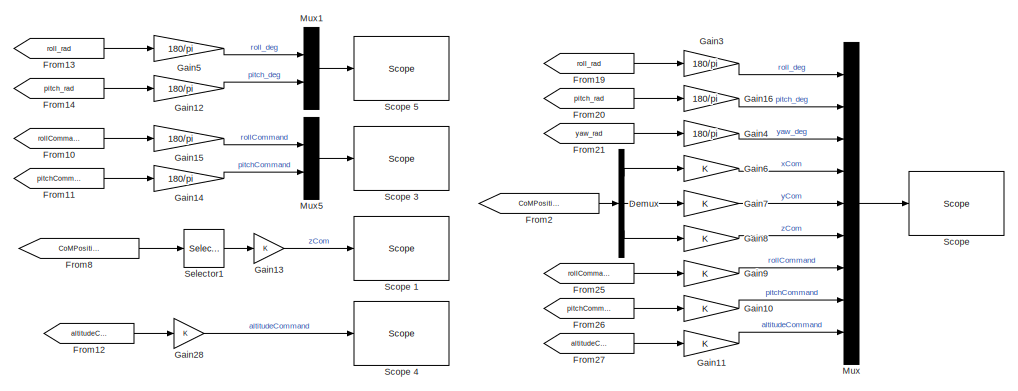
[diagram: root canvas - part 1/4, top center region]
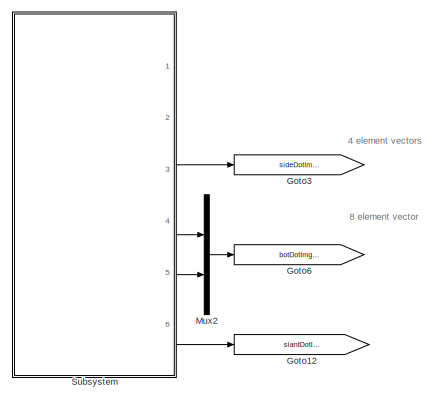
[diagram: root canvas - part 2/4, bottom left region]
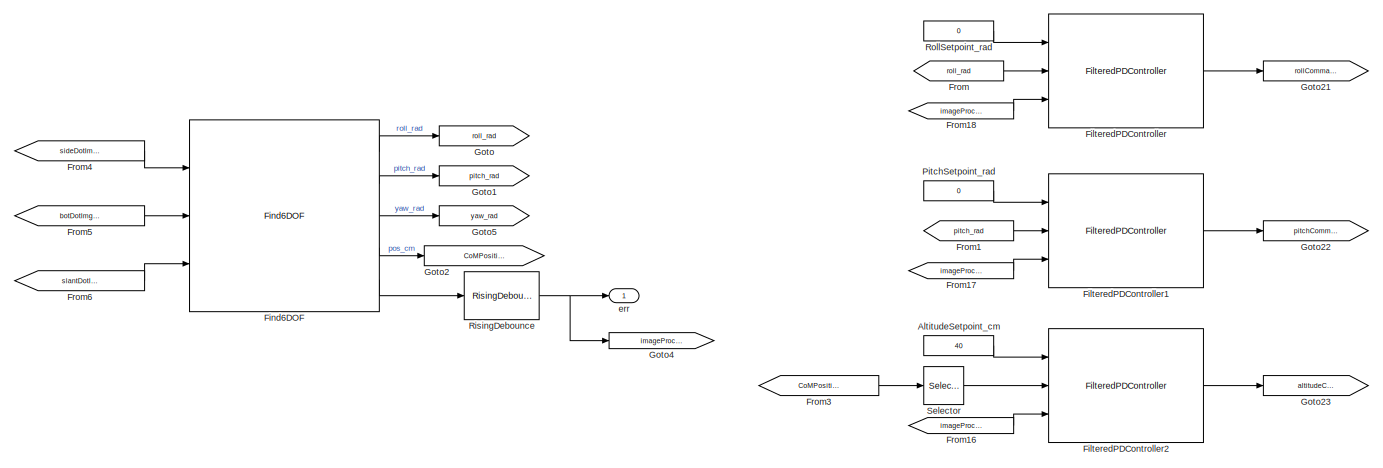
[diagram: root canvas - part 3/4, bottom center region]
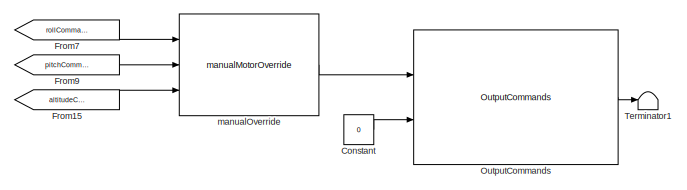
[diagram: root canvas - part 4/4, bottom right region]
MODEL slx_aaf79dab848f
KIND model
CONFIG AbsTol = auto
CONFIG EnableMultiTasking = on
CONFIG FixedStep = 0.01
CONFIG MaxStep = auto
CONFIG MinStep = auto
CONFIG RelTol = 1e-3
CONFIG SampleTimeConstraint = Unconstrained
CONFIG Solver = ode8
CONFIG SolverName = ode8
CONFIG StartTime = 0.0
CONFIG StopFcn = stopCallback
CONFIG StopTime = Inf
BLOCK [Constant] AltitudeSetpoint_cm
  Value = 40
BLOCK [Constant] Constant
  Value = 0
BLOCK [Demux] Demux
  DisplayOption = bar
  Outputs = 3
  Ports = [1, 3]
BLOCK [Reference] FilteredPDController  REF=filteredPDController_ul/FilteredPDController
  Ports = [3, 1]
  SourceBlock = filteredPDController_ul/FilteredPDController
BLOCK [Reference] FilteredPDController1  REF=filteredPDController_ul/FilteredPDController
  Ports = [3, 1]
  SourceBlock = filteredPDController_ul/FilteredPDController
BLOCK [Reference] FilteredPDController2  REF=filteredPDController_ul/FilteredPDController
  Ports = [3, 1]
  SourceBlock = filteredPDController_ul/FilteredPDController
BLOCK [Reference] Find6DOF  REF=find6DOF_cl/Find6DOF
  Ports = [3, 5]
  SourceBlock = find6DOF_cl/Find6DOF
BLOCK [From] From
  GotoTag = roll_rad
BLOCK [From] From1
  GotoTag = pitch_rad
BLOCK [From] From10
  GotoTag = rollCommand
BLOCK [From] From11
  GotoTag = pitchCommand
BLOCK [From] From12
  GotoTag = altitudeCommand
BLOCK [From] From13
  Commented = on
  GotoTag = roll_rad
BLOCK [From] From14
  Commented = on
  GotoTag = pitch_rad
BLOCK [From] From15
  GotoTag = altitudeCommand
BLOCK [From] From16
  GotoTag = imageProcFltFlg
BLOCK [From] From17
  GotoTag = imageProcFltFlg
BLOCK [From] From18
  GotoTag = imageProcFltFlg
BLOCK [From] From19
  GotoTag = roll_rad
BLOCK [From] From2
  GotoTag = CoMPositionVec_cm
BLOCK [From] From20
  GotoTag = pitch_rad
BLOCK [From] From21
  GotoTag = yaw_rad
BLOCK [From] From25
  GotoTag = rollCommand
BLOCK [From] From26
  GotoTag = pitchCommand
BLOCK [From] From27
  GotoTag = altitudeCommand
BLOCK [From] From3
  GotoTag = CoMPositionVec_cm
BLOCK [From] From4
  GotoTag = sideDotImgCoords_px
BLOCK [From] From5
  GotoTag = botDotImgCoords_px
BLOCK [From] From6
  GotoTag = slantDotImgCoords_px
BLOCK [From] From7
  GotoTag = rollCommand
BLOCK [From] From8
  GotoTag = CoMPositionVec_cm
BLOCK [From] From9
  GotoTag = pitchCommand
BLOCK [Gain] Gain10
  OutDataTypeStr = Inherit: Inherit via internal rule
  ParamDataTypeStr = Inherit: Inherit via internal rule
  SaturateOnIntegerOverflow = off
BLOCK [Gain] Gain11
  OutDataTypeStr = Inherit: Inherit via internal rule
  ParamDataTypeStr = Inherit: Inherit via internal rule
  SaturateOnIntegerOverflow = off
BLOCK [Gain] Gain12
  Commented = on
  Gain = 180/pi
  OutDataTypeStr = Inherit: Inherit via internal rule
  ParamDataTypeStr = Inherit: Inherit via internal rule
  SaturateOnIntegerOverflow = off
BLOCK [Gain] Gain13
  OutDataTypeStr = Inherit: Inherit via internal rule
  ParamDataTypeStr = Inherit: Inherit via internal rule
  SaturateOnIntegerOverflow = off
BLOCK [Gain] Gain14
  Gain = 180/pi
  OutDataTypeStr = Inherit: Inherit via internal rule
  ParamDataTypeStr = Inherit: Inherit via internal rule
  SaturateOnIntegerOverflow = off
BLOCK [Gain] Gain15
  Gain = 180/pi
  OutDataTypeStr = Inherit: Inherit via internal rule
  ParamDataTypeStr = Inherit: Inherit via internal rule
  SaturateOnIntegerOverflow = off
BLOCK [Gain] Gain16
  Gain = 180/pi
  OutDataTypeStr = Inherit: Inherit via internal rule
  ParamDataTypeStr = Inherit: Inherit via internal rule
  SaturateOnIntegerOverflow = off
BLOCK [Gain] Gain28
  OutDataTypeStr = Inherit: Inherit via internal rule
  ParamDataTypeStr = Inherit: Inherit via internal rule
  SaturateOnIntegerOverflow = off
BLOCK [Gain] Gain3
  Gain = 180/pi
  OutDataTypeStr = Inherit: Inherit via internal rule
  ParamDataTypeStr = Inherit: Inherit via internal rule
  SaturateOnIntegerOverflow = off
BLOCK [Gain] Gain4
  Gain = 180/pi
  OutDataTypeStr = Inherit: Inherit via internal rule
  ParamDataTypeStr = Inherit: Inherit via internal rule
  SaturateOnIntegerOverflow = off
BLOCK [Gain] Gain5
  Commented = on
  Gain = 180/pi
  OutDataTypeStr = Inherit: Inherit via internal rule
  ParamDataTypeStr = Inherit: Inherit via internal rule
  SaturateOnIntegerOverflow = off
BLOCK [Gain] Gain6
  OutDataTypeStr = Inherit: Inherit via internal rule
  ParamDataTypeStr = Inherit: Inherit via internal rule
  SaturateOnIntegerOverflow = off
BLOCK [Gain] Gain7
  OutDataTypeStr = Inherit: Inherit via internal rule
  ParamDataTypeStr = Inherit: Inherit via internal rule
  SaturateOnIntegerOverflow = off
BLOCK [Gain] Gain8
  OutDataTypeStr = Inherit: Inherit via internal rule
  ParamDataTypeStr = Inherit: Inherit via internal rule
  SaturateOnIntegerOverflow = off
BLOCK [Gain] Gain9
  OutDataTypeStr = Inherit: Inherit via internal rule
  ParamDataTypeStr = Inherit: Inherit via internal rule
  SaturateOnIntegerOverflow = off
BLOCK [Goto] Goto
  GotoTag = roll_rad
BLOCK [Goto] Goto1
  GotoTag = pitch_rad
BLOCK [Goto] Goto12
  GotoTag = slantDotImgCoords_px
BLOCK [Goto] Goto2
  GotoTag = CoMPositionVec_cm
BLOCK [Goto] Goto21
  GotoTag = rollCommand
BLOCK [Goto] Goto22
  GotoTag = pitchCommand
BLOCK [Goto] Goto23
  GotoTag = altitudeCommand
BLOCK [Goto] Goto3
  GotoTag = sideDotImgCoords_px
BLOCK [Goto] Goto4
  GotoTag = imageProcFltFlg
BLOCK [Goto] Goto5
  GotoTag = yaw_rad
BLOCK [Goto] Goto6
  GotoTag = botDotImgCoords_px
BLOCK [Mux] Mux
  DisplayOption = bar
  Inputs = 9
  Ports = [9, 1]
BLOCK [Mux] Mux1
  Commented = on
  DisplayOption = bar
  Inputs = 2
  Ports = [2, 1]
BLOCK [Mux] Mux2
  DisplayOption = bar
  Inputs = 2
  Ports = [2, 1]
BLOCK [Mux] Mux5
  DisplayOption = bar
  Inputs = 2
  Ports = [2, 1]
BLOCK [Reference] OutputCommands  REF=outputCommands_ul/OutputCommands
  Ports = [2, 1]
  SourceBlock = outputCommands_ul/OutputCommands
BLOCK [Constant] PitchSetpoint_rad
  Value = 0
BLOCK [Reference] RisingDebounce  REF=risingDebounce_ul/RisingDebounce
  Ports = [1, 1]
  SourceBlock = risingDebounce_ul/RisingDebounce
BLOCK [Constant] RollSetpoint_rad
  Value = 0
BLOCK [Reference] Scope   REF=slrtlib/Displays and
Logging/Scope 
  Ports = [1]
  SourceBlock = slrtlib/Displays and\nLogging/Scope
  SourceProductBaseCode = XP
  SourceProductName = Simulink Real-Time
  SourceType = xpcscopeblock
BLOCK [Reference] Scope 1  REF=slrtlib/Displays and
Logging/Scope 
  Ports = [1]
  SourceBlock = slrtlib/Displays and\nLogging/Scope
  SourceProductBaseCode = XP
  SourceProductName = Simulink Real-Time
  SourceType = xpcscopeblock
BLOCK [Reference] Scope 3  REF=slrtlib/Displays and
Logging/Scope 
  Ports = [1]
  SourceBlock = slrtlib/Displays and\nLogging/Scope
  SourceProductBaseCode = XP
  SourceProductName = Simulink Real-Time
  SourceType = xpcscopeblock
BLOCK [Reference] Scope 4  REF=slrtlib/Displays and
Logging/Scope 
  Ports = [1]
  SourceBlock = slrtlib/Displays and\nLogging/Scope
  SourceProductBaseCode = XP
  SourceProductName = Simulink Real-Time
  SourceType = xpcscopeblock
BLOCK [Reference] Scope 5  REF=slrtlib/Displays and
Logging/Scope 
  Commented = on
  Ports = [1]
  SourceBlock = slrtlib/Displays and\nLogging/Scope
  SourceProductBaseCode = XP
  SourceProductName = Simulink Real-Time
  SourceType = xpcscopeblock
BLOCK [Selector] Selector
  IndexOptions = Index vector (dialog)
  Indices = 3
  InputPortWidth = 3
  OutputSizes = 1
  Ports = [1, 1]
BLOCK [Selector] Selector1
  IndexOptions = Index vector (dialog)
  Indices = 3
  InputPortWidth = 3
  OutputSizes = 1
  Ports = [1, 1]
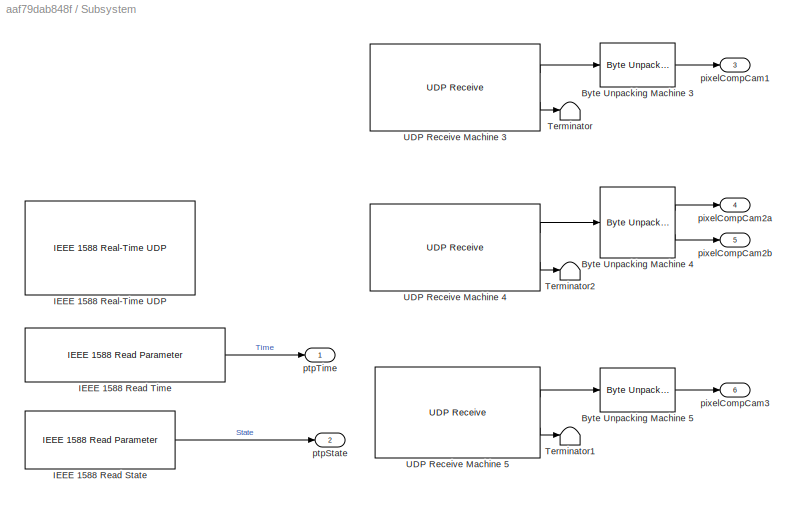
BLOCK [SubSystem] Subsystem
  Ports = [0, 6]
  RequestExecContextInheritance = off
  TreatAsAtomicUnit = on
BLOCK [Reference] Subsystem/Byte Unpacking Machine 3   REF=xpcutilitieslib/Byte Unpacking 
  Ports = [1, 1]
  SourceBlock = xpcutilitieslib/Byte Unpacking
  SourceProductBaseCode = XP
  SourceProductName = Simulink Real-Time
  SourceType = xpcbytepacking
BLOCK [Reference] Subsystem/Byte Unpacking Machine 4  REF=xpcutilitieslib/Byte Unpacking 
  Ports = [1, 2]
  SourceBlock = xpcutilitieslib/Byte Unpacking
  SourceProductBaseCode = XP
  SourceProductName = Simulink Real-Time
  SourceType = xpcbytepacking
BLOCK [Reference] Subsystem/Byte Unpacking Machine 5  REF=xpcutilitieslib/Byte Unpacking 
  Ports = [1, 1]
  SourceBlock = xpcutilitieslib/Byte Unpacking
  SourceProductBaseCode = XP
  SourceProductName = Simulink Real-Time
  SourceType = xpcbytepacking
BLOCK [Reference] Subsystem/IEEE 1588 Read State  REF=ptplib/IEEE 1588
Read Parameter
  Ports = [0, 1]
  Priority = 1
  SourceBlock = ptplib/IEEE 1588\nRead Parameter
  SourceProductBaseCode = XP
  SourceProductName = Simulink Real-Time
  SourceType = IEEE_1588_read_param
BLOCK [Reference] Subsystem/IEEE 1588 Read Time  REF=ptplib/IEEE 1588
Read Parameter
  Ports = [0, 1]
  Priority = 1
  SourceBlock = ptplib/IEEE 1588\nRead Parameter
  SourceProductBaseCode = XP
  SourceProductName = Simulink Real-Time
  SourceType = IEEE_1588_read_param
BLOCK [Reference] Subsystem/IEEE 1588 Real-Time UDP  REF=ptplib/IEEE 1588 Real-Time UDP
  Ports = []
  Priority = 0
  SourceBlock = ptplib/IEEE 1588 Real-Time UDP
  SourceProductBaseCode = XP
  SourceProductName = Simulink Real-Time
  SourceType = IEEE1588_UDP
BLOCK [Terminator] Subsystem/Terminator
BLOCK [Terminator] Subsystem/Terminator1
BLOCK [Terminator] Subsystem/Terminator2
BLOCK [Reference] Subsystem/UDP Receive Machine 3  REF=xpcrtudplib/UDP Receive
  Ports = [0, 2]
  SourceBlock = xpcrtudplib/UDP Receive
  SourceProductBaseCode = XP
  SourceProductName = Simulink Real-Time
  SourceType = slrtudpreceive
BLOCK [Reference] Subsystem/UDP Receive Machine 4  REF=xpcrtudplib/UDP Receive
  Ports = [0, 2]
  SourceBlock = xpcrtudplib/UDP Receive
  SourceProductBaseCode = XP
  SourceProductName = Simulink Real-Time
  SourceType = slrtudpreceive
BLOCK [Reference] Subsystem/UDP Receive Machine 5  REF=xpcrtudplib/UDP Receive
  Ports = [0, 2]
  SourceBlock = xpcrtudplib/UDP Receive
  SourceProductBaseCode = XP
  SourceProductName = Simulink Real-Time
  SourceType = slrtudpreceive
BLOCK [Outport] Subsystem/pixelCompCam1
  IconDisplay = Port number
  Port = 3
BLOCK [Outport] Subsystem/pixelCompCam2a
  IconDisplay = Port number
  Port = 4
BLOCK [Outport] Subsystem/pixelCompCam2b
  IconDisplay = Port number
  Port = 5
BLOCK [Outport] Subsystem/pixelCompCam3
  IconDisplay = Port number
  Port = 6
BLOCK [Outport] Subsystem/ptpState
  IconDisplay = Port number
  Port = 2
BLOCK [Outport] Subsystem/ptpTime
  IconDisplay = Port number
BLOCK [Terminator] Terminator1
BLOCK [Outport] err
  IconDisplay = Port number
BLOCK [Reference] manualOverride  REF=manualMotorOverride_ul/manualMotorOverride
  Ports = [3, 1]
  SourceBlock = manualMotorOverride_ul/manualMotorOverride
ANNOTATION (root): 4 element vectors
ANNOTATION (root): 8 element vector
LINE AltitudeSetpoint_cm:1 -> FilteredPDController2:1
LINE Constant:1 -> OutputCommands:2
LINE Demux:1 -> Gain6:1
LINE Demux:2 -> Gain7:1
LINE Demux:3 -> Gain8:1
LINE FilteredPDController1:1 -> Goto22:1
LINE FilteredPDController2:1 -> Goto23:1
LINE FilteredPDController:1 -> Goto21:1
LINE Find6DOF:1 -> Goto:1
LINE Find6DOF:2 -> Goto1:1
LINE Find6DOF:3 -> Goto5:1
LINE Find6DOF:4 -> Goto2:1
LINE Find6DOF:5 -> RisingDebounce:1
LINE From10:1 -> Gain15:1
LINE From11:1 -> Gain14:1
LINE From12:1 -> Gain28:1
LINE From13:1 -> Gain5:1
LINE From14:1 -> Gain12:1
LINE From15:1 -> manualOverride:3
LINE From16:1 -> FilteredPDController2:3
LINE From17:1 -> FilteredPDController1:3
LINE From18:1 -> FilteredPDController:3
LINE From19:1 -> Gain3:1
LINE From1:1 -> FilteredPDController1:2
LINE From20:1 -> Gain16:1
LINE From21:1 -> Gain4:1
LINE From25:1 -> Gain9:1
LINE From26:1 -> Gain10:1
LINE From27:1 -> Gain11:1
LINE From2:1 -> Demux:1
LINE From3:1 -> Selector:1
LINE From4:1 -> Find6DOF:1
LINE From5:1 -> Find6DOF:2
LINE From6:1 -> Find6DOF:3
LINE From7:1 -> manualOverride:1
LINE From8:1 -> Selector1:1
LINE From9:1 -> manualOverride:2
LINE From:1 -> FilteredPDController:2
LINE Gain10:1 -> Mux:8
LINE Gain11:1 -> Mux:9
LINE Gain12:1 -> Mux1:2
LINE Gain13:1 -> Scope 1:1
LINE Gain14:1 -> Mux5:2
LINE Gain15:1 -> Mux5:1
LINE Gain16:1 -> Mux:2
LINE Gain28:1 -> Scope 4:1
LINE Gain3:1 -> Mux:1
LINE Gain4:1 -> Mux:3
LINE Gain5:1 -> Mux1:1
LINE Gain6:1 -> Mux:4
LINE Gain7:1 -> Mux:5
LINE Gain8:1 -> Mux:6
LINE Gain9:1 -> Mux:7
LINE Mux1:1 -> Scope 5:1
LINE Mux2:1 -> Goto6:1
LINE Mux5:1 -> Scope 3:1
LINE Mux:1 -> Scope :1
LINE OutputCommands:1 -> Terminator1:1
LINE PitchSetpoint_rad:1 -> FilteredPDController1:1
NET RisingDebounce:1 -> Goto4:1, err:1
LINE RollSetpoint_rad:1 -> FilteredPDController:1
LINE Selector1:1 -> Gain13:1
LINE Selector:1 -> FilteredPDController2:2
LINE Subsystem/Byte Unpacking Machine 3 :1 -> Subsystem/pixelCompCam1:1
LINE Subsystem/Byte Unpacking Machine 4:1 -> Subsystem/pixelCompCam2a:1
LINE Subsystem/Byte Unpacking Machine 4:2 -> Subsystem/pixelCompCam2b:1
LINE Subsystem/Byte Unpacking Machine 5:1 -> Subsystem/pixelCompCam3:1
LINE Subsystem/IEEE 1588 Read State:1 -> Subsystem/ptpState:1
LINE Subsystem/IEEE 1588 Read Time:1 -> Subsystem/ptpTime:1
LINE Subsystem/UDP Receive Machine 3:1 -> Subsystem/Byte Unpacking Machine 3 :1
LINE Subsystem/UDP Receive Machine 3:2 -> Subsystem/Terminator:1
LINE Subsystem/UDP Receive Machine 4:1 -> Subsystem/Byte Unpacking Machine 4:1
LINE Subsystem/UDP Receive Machine 4:2 -> Subsystem/Terminator2:1
LINE Subsystem/UDP Receive Machine 5:1 -> Subsystem/Byte Unpacking Machine 5:1
LINE Subsystem/UDP Receive Machine 5:2 -> Subsystem/Terminator1:1
LINE Subsystem:3 -> Goto3:1
LINE Subsystem:4 -> Mux2:1
LINE Subsystem:5 -> Mux2:2
LINE Subsystem:6 -> Goto12:1
LINE manualOverride:1 -> OutputCommands:1
note: NET lines group one-source signal fan-out (src -> all destinations, sorted); 1:1 wires keep LINE
